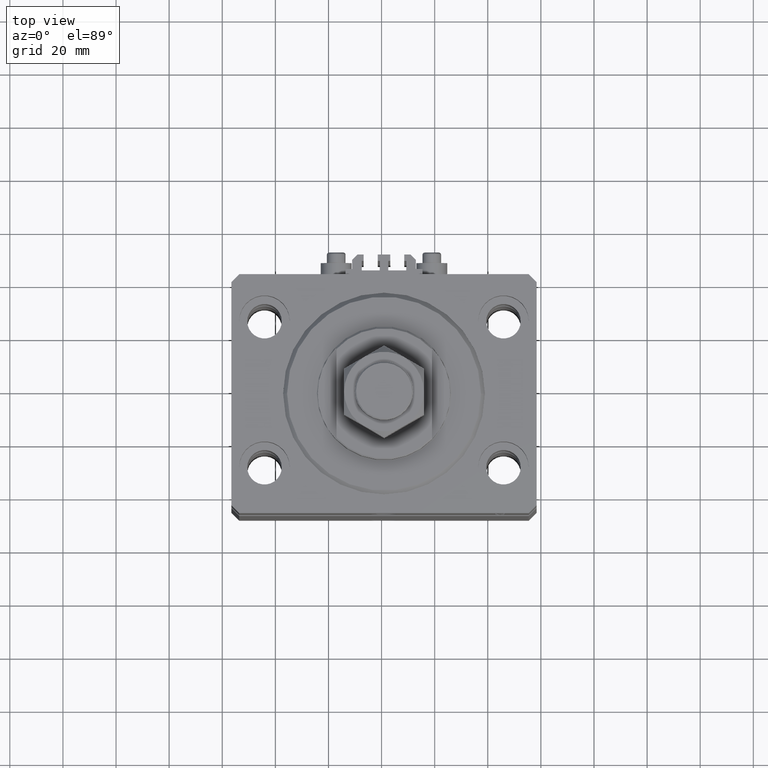
[diagram: clean part render]
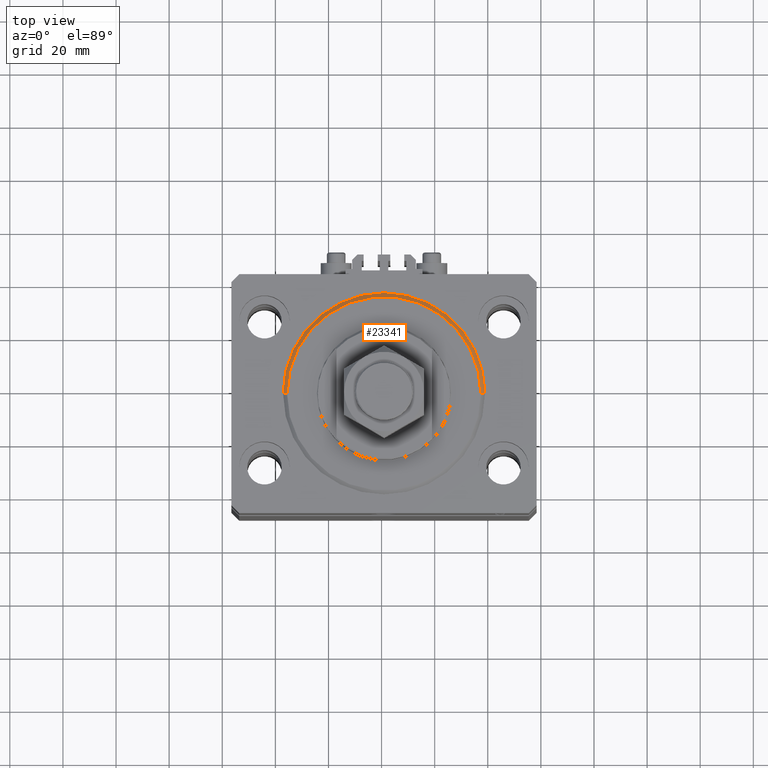
[diagram: same view with one face highlighted and labeled with its STEP entity id]
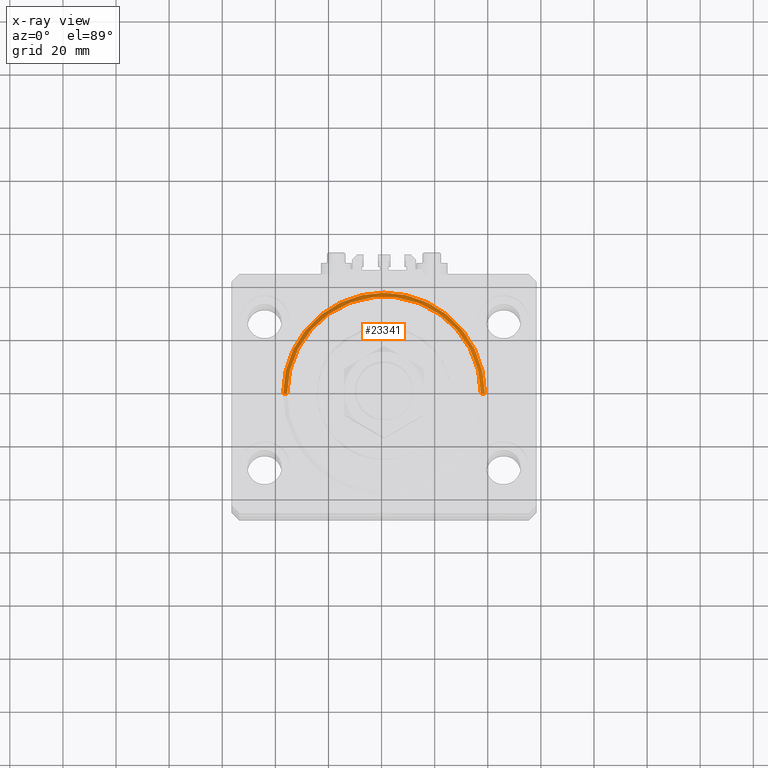
[diagram: x-ray of the same camera — body ghosted, the highlighted face saturated]
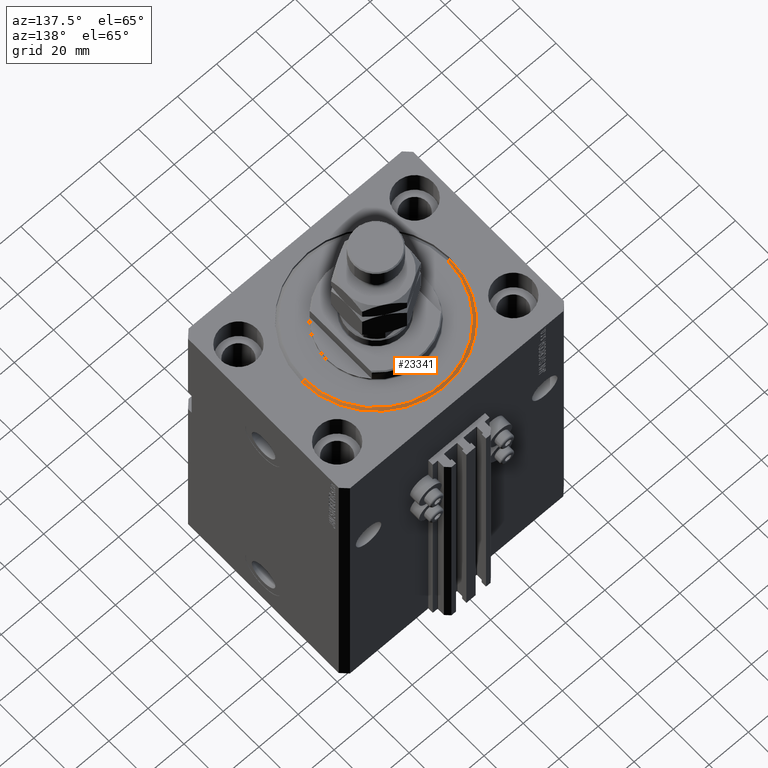
[diagram: same view with one face highlighted and labeled with its STEP entity id]
A machine part, top view. The second image highlights one B-rep face of the part: STEP entity #23341.
The next image is the same camera in x-ray: the body ghosted, the highlighted face saturated — about 0% of this face is hidden behind the body in this view.
A second angle (auxiliary view) of the same face is appended — the face is thin or edge-on in the first view.
In plain terms, the highlighted conical surface has half-angle 45 deg.
Its self-contained STEP definition (entity closure, byte-faithful):
#122 = CONICAL_SURFACE ( 'NONE', #22266, 38.00000000000000000, 0.7853981633974529419 ) ;
#557 = CARTESIAN_POINT ( 'NONE',  ( 38.00000000000000000, 4.653657836759941941E-15, 1.499999999999987566 ) ) ;
#562 = EDGE_CURVE ( 'NONE', #32775, #44143, #20627, .T. ) ;
#970 = EDGE_CURVE ( 'NONE', #33640, #16254, #28828, .T. ) ;
#3080 = DIRECTION ( 'NONE',  ( 1.000000000000000000, 0.000000000000000000, 0.000000000000000000 ) ) ;
#6430 = CARTESIAN_POINT ( 'NONE',  ( 0.000000000000000000, 0.000000000000000000, 0.000000000000000000 ) ) ;
#7513 = FACE_OUTER_BOUND ( 'NONE', #9100, .T. ) ;
#7615 = DIRECTION ( 'NONE',  ( -0.000000000000000000, -0.000000000000000000, 1.000000000000000000 ) ) ;
#9100 = EDGE_LOOP ( 'NONE', ( #45599, #20871, #13114, #23153 ) ) ;
#10580 = EDGE_CURVE ( 'NONE', #44143, #33640, #16597, .T. ) ;
#11630 = DIRECTION ( 'NONE',  ( 1.000000000000000000, 0.000000000000000000, 0.000000000000000000 ) ) ;
#12738 = DIRECTION ( 'NONE',  ( 0.7071067811865507924, 0.000000000000000000, 0.7071067811865441310 ) ) ;
#13114 = ORIENTED_EDGE ( 'NONE', *, *, #970, .F. ) ;
#13232 = AXIS2_PLACEMENT_3D ( 'NONE', #42868, #7615, #15590 ) ;
#14747 = LINE ( 'NONE', #30434, #28392 ) ;
#15590 = DIRECTION ( 'NONE',  ( 1.000000000000000000, 0.000000000000000000, 0.000000000000000000 ) ) ;
#16254 = VERTEX_POINT ( 'NONE', #39240 ) ;
#16597 = LINE ( 'NONE', #32284, #48829 ) ;
#18343 = DIRECTION ( 'NONE',  ( -0.7071067811865507924, 8.659560562354972301E-17, 0.7071067811865441310 ) ) ;
#18963 = AXIS2_PLACEMENT_3D ( 'NONE', #6430, #22589, #3080 ) ;
#20627 = CIRCLE ( 'NONE', #18963, 36.50000000000000000 ) ;
#20871 = ORIENTED_EDGE ( 'NONE', *, *, #35798, .T. ) ;
#22266 = AXIS2_PLACEMENT_3D ( 'NONE', #31171, #46892, #11630 ) ;
#22589 = DIRECTION ( 'NONE',  ( -0.000000000000000000, -0.000000000000000000, -1.000000000000000000 ) ) ;
#23153 = ORIENTED_EDGE ( 'NONE', *, *, #10580, .F. ) ;
#23341 = ADVANCED_FACE ( 'NONE', ( #7513 ), #122, .T. ) ;
#27469 = CARTESIAN_POINT ( 'NONE',  ( -36.50000000000000000, 4.561809326823889791E-15, 0.000000000000000000 ) ) ;
#28392 = VECTOR ( 'NONE', #18343, 1000.000000000000114 ) ;
#28828 = CIRCLE ( 'NONE', #13232, 38.00000000000000000 ) ;
#30434 = CARTESIAN_POINT ( 'NONE',  ( -38.00000000000000000, 4.653657836759941152E-15, 1.499999999999987566 ) ) ;
#31171 = CARTESIAN_POINT ( 'NONE',  ( 0.000000000000000000, 0.000000000000000000, 1.499999999999987566 ) ) ;
#32284 = CARTESIAN_POINT ( 'NONE',  ( 38.00000000000000000, 0.000000000000000000, 1.499999999999987566 ) ) ;
#32775 = VERTEX_POINT ( 'NONE', #27469 ) ;
#33640 = VERTEX_POINT ( 'NONE', #557 ) ;
#35798 = EDGE_CURVE ( 'NONE', #32775, #16254, #14747, .T. ) ;
#39240 = CARTESIAN_POINT ( 'NONE',  ( -38.00000000000000000, 0.000000000000000000, 1.499999999999987566 ) ) ;
#40550 = CARTESIAN_POINT ( 'NONE',  ( 36.50000000000000000, 0.000000000000000000, 0.000000000000000000 ) ) ;
#42868 = CARTESIAN_POINT ( 'NONE',  ( 0.000000000000000000, 0.000000000000000000, 1.499999999999987566 ) ) ;
#44143 = VERTEX_POINT ( 'NONE', #40550 ) ;
#45599 = ORIENTED_EDGE ( 'NONE', *, *, #562, .F. ) ;
#46892 = DIRECTION ( 'NONE',  ( -0.000000000000000000, -0.000000000000000000, 1.000000000000000000 ) ) ;
#48829 = VECTOR ( 'NONE', #12738, 1000.000000000000114 ) ;